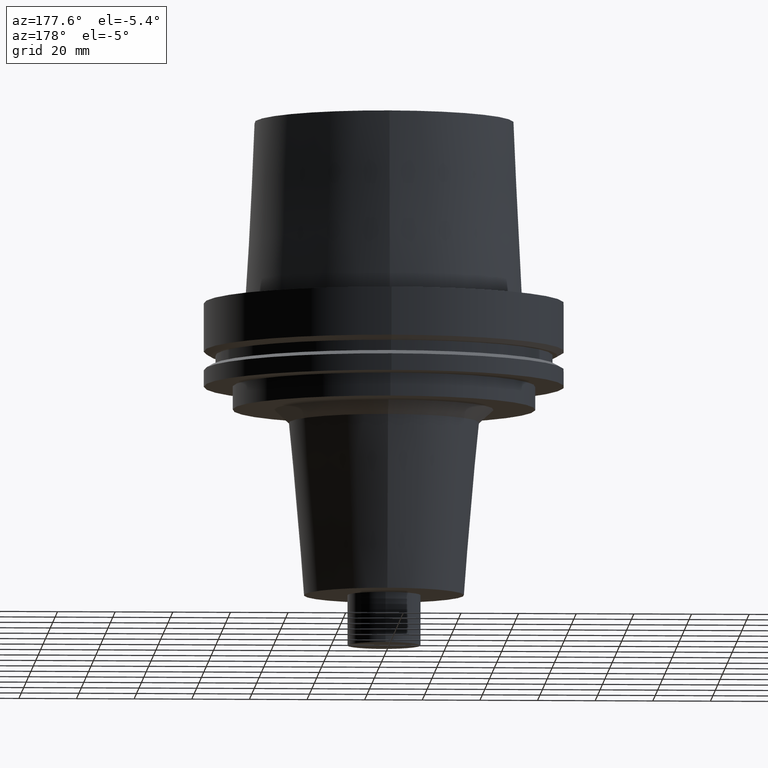
[diagram: clean part render]
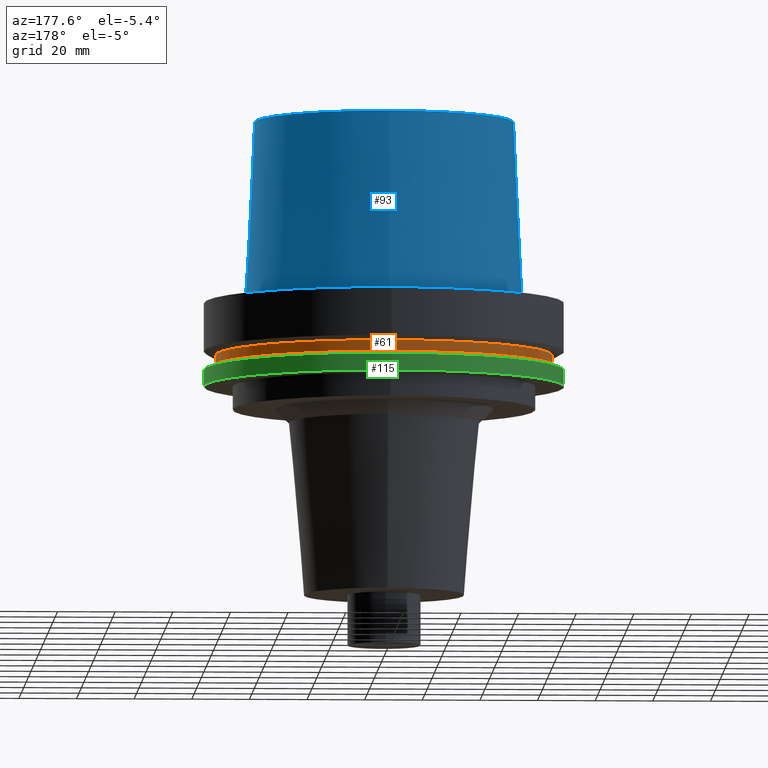
[diagram: same view with three faces highlighted in distinct colors, each labeled with its STEP entity id]
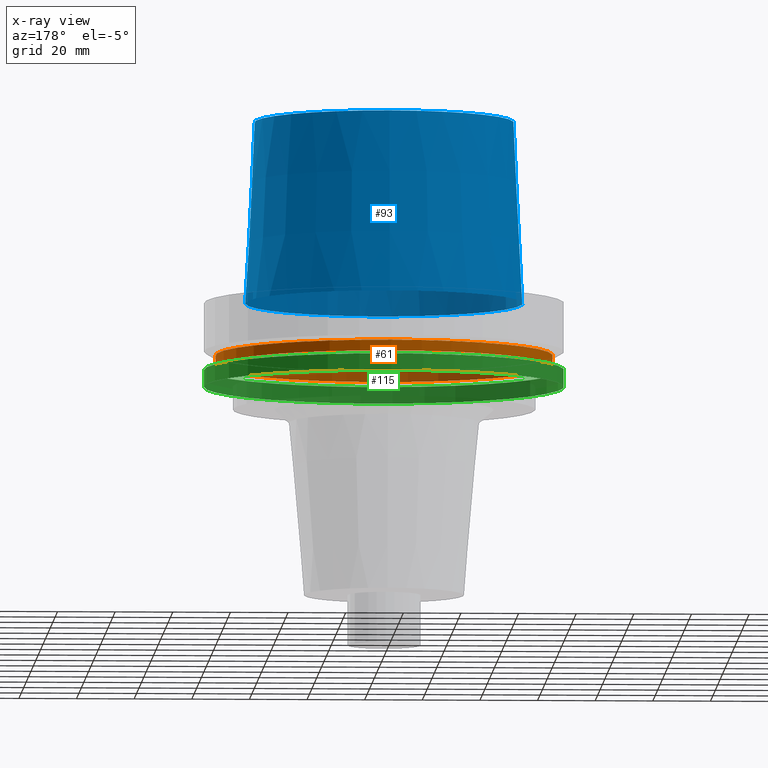
[diagram: x-ray of the same camera — body ghosted, the three highlighted faces saturated]
A machine part, auxiliary view with three faces highlighted in distinct colors.
The next image is the same camera in x-ray (body ghosted, the three faces saturated) — at least one of them is partly hidden behind the body in this view.
Their STEP definitions:

[orange] entity #61 — the highlighted cylindrical surface (bore or boss wall) has radius 58.5 mm, axis along (0, 0, -1).
#61=ADVANCED_FACE('Unnamed[1]',(#168,#169),#170,.T.);
#81=EDGE_CURVE('Unnamed[1]',#201,#201,#202,.T.);
#99=EDGE_CURVE('Unnamed[1]',#229,#229,#230,.T.);
#168=FACE_BOUND('',#317,.T.);
#169=FACE_BOUND('',#318,.T.);
#170=CYLINDRICAL_SURFACE('',#319,58.4999999999999);
#201=VERTEX_POINT('',#358);
#202=CIRCLE('',#359,58.5);
#229=VERTEX_POINT('',#394);
#230=CIRCLE('',#395,58.4999999999998);
#317=EDGE_LOOP('',(#493));
#318=EDGE_LOOP('',(#494));
#319=AXIS2_PLACEMENT_3D('',#495,#496,#497);
#358=CARTESIAN_POINT('',(1.10983616172739E-015,58.5,-18.1250000000017));
#359=AXIS2_PLACEMENT_3D('',#531,#532,#533);
#394=CARTESIAN_POINT('',(1.33945743656732E-015,58.4999999999998,-21.8749999999984));
#395=AXIS2_PLACEMENT_3D('',#561,#562,#563);
#493=ORIENTED_EDGE('',*,*,#99,.F.);
#494=ORIENTED_EDGE('',*,*,#81,.T.);
#495=CARTESIAN_POINT('',(1.22464679914736E-015,2.44929359829471E-015,-20.0));
#496=DIRECTION('',(6.12323399573677E-017,1.22464679914735E-016,-1.0));
#497=DIRECTION('',(-1.23259516440783E-032,1.0,1.22464679914735E-016));
#531=CARTESIAN_POINT('',(1.10983616172739E-015,2.21967232345478E-015,-18.1250000000017));
#532=DIRECTION('',(6.12323399573677E-017,1.22464679914735E-016,-1.0));
#533=DIRECTION('',(-1.23259516440783E-032,1.0,1.22464679914735E-016));
#561=CARTESIAN_POINT('',(1.33945743656732E-015,2.67891487313464E-015,-21.8749999999984));
#562=DIRECTION('',(6.12323399573677E-017,1.22464679914735E-016,-1.0));
#563=DIRECTION('',(-1.23259516440783E-032,1.0,1.22464679914735E-016));

[blue] entity #93 — the highlighted conical surface has half-angle 2.868 deg.
#79=EDGE_CURVE('Unnamed[1]',#198,#198,#199,.T.);
#90=EDGE_CURVE('Unnamed[1]',#215,#215,#216,.T.);
#93=ADVANCED_FACE('Unnamed[1]',(#219,#220),#221,.T.);
#198=VERTEX_POINT('',#354);
#199=CIRCLE('',#355,48.1342525050097);
#215=VERTEX_POINT('',#376);
#216=CIRCLE('',#377,44.9779398797591);
#219=FACE_BOUND('',#381,.T.);
#220=FACE_BOUND('',#382,.T.);
#221=CONICAL_SURFACE('',#383,46.5560961923844,0.0500583457465964);
#354=CARTESIAN_POINT('',(3.88342032297484E-029,48.1342525050097,-6.38005254174039E-013));
#355=AXIS2_PLACEMENT_3D('',#528,#529,#530);
#376=CARTESIAN_POINT('',(-3.85763741731416E-015,44.9779398797591,62.9999999999999));
#377=AXIS2_PLACEMENT_3D('',#546,#547,#548);
#381=EDGE_LOOP('',(#550));
#382=EDGE_LOOP('',(#551));
#383=AXIS2_PLACEMENT_3D('',#552,#553,#554);
#528=CARTESIAN_POINT('',(3.91573749152705E-029,7.83147498305409E-029,-6.3948846218409E-013));
#529=DIRECTION('',(6.12323399573677E-017,1.22464679914735E-016,-1.0));
#530=DIRECTION('',(-1.23259516440783E-032,1.0,1.22464679914735E-016));
#546=CARTESIAN_POINT('',(-3.85763741731416E-015,-7.71527483462831E-015,62.9999999999999));
#547=DIRECTION('',(6.12323399573677E-017,1.22464679914735E-016,-1.0));
#548=DIRECTION('',(-1.23259516440783E-032,1.0,1.22464679914735E-016));
#550=ORIENTED_EDGE('',*,*,#79,.F.);
#551=ORIENTED_EDGE('',*,*,#90,.T.);
#552=CARTESIAN_POINT('',(-1.92881870865706E-015,-3.85763741731411E-015,31.4999999999996));
#553=DIRECTION('',(6.12323399573676E-017,1.22464679914735E-016,-1.0));
#554=DIRECTION('',(-1.23259516440783E-032,1.0,1.22464679914735E-016));

[green] entity #115 — the highlighted cylindrical surface (bore or boss wall) has radius 62.5 mm, axis along (0, 0, -1).
#95=EDGE_CURVE('Unnamed[1]',#223,#223,#224,.T.);
#115=ADVANCED_FACE('Unnamed[1]',(#252,#253),#254,.T.);
#130=EDGE_CURVE('Unnamed[1]',#275,#275,#276,.T.);
#223=VERTEX_POINT('',#386);
#224=CIRCLE('',#387,62.5);
#252=FACE_BOUND('',#423,.T.);
#253=FACE_BOUND('',#424,.T.);
#254=CYLINDRICAL_SURFACE('',#425,62.5);
#275=VERTEX_POINT('',#451);
#276=CIRCLE('',#452,62.5);
#386=CARTESIAN_POINT('',(1.77573785876367E-015,62.5,-29.0000000000001));
#387=AXIS2_PLACEMENT_3D('',#555,#556,#557);
#423=EDGE_LOOP('',(#587));
#424=EDGE_LOOP('',(#588));
#425=AXIS2_PLACEMENT_3D('',#589,#590,#591);
#451=CARTESIAN_POINT('',(1.42350465640827E-015,62.5,-23.2475952641916));
#452=AXIS2_PLACEMENT_3D('',#611,#612,#613);
#555=CARTESIAN_POINT('',(1.77573785876367E-015,3.55147571752733E-015,-29.0000000000001));
#556=DIRECTION('',(6.12323399573677E-017,1.22464679914735E-016,-1.0));
#557=DIRECTION('',(-1.23259516440783E-032,1.0,1.22464679914735E-016));
#587=ORIENTED_EDGE('',*,*,#95,.F.);
#588=ORIENTED_EDGE('',*,*,#130,.T.);
#589=CARTESIAN_POINT('',(1.59962125758597E-015,3.19924251517194E-015,-26.1237976320958));
#590=DIRECTION('',(6.12323399573677E-017,1.22464679914735E-016,-1.0));
#591=DIRECTION('',(-1.23259516440783E-032,1.0,1.22464679914735E-016));
#611=CARTESIAN_POINT('',(1.42350465640827E-015,2.84700931281654E-015,-23.2475952641916));
#612=DIRECTION('',(6.12323399573677E-017,1.22464679914735E-016,-1.0));
#613=DIRECTION('',(-1.23259516440783E-032,1.0,1.22464679914735E-016));